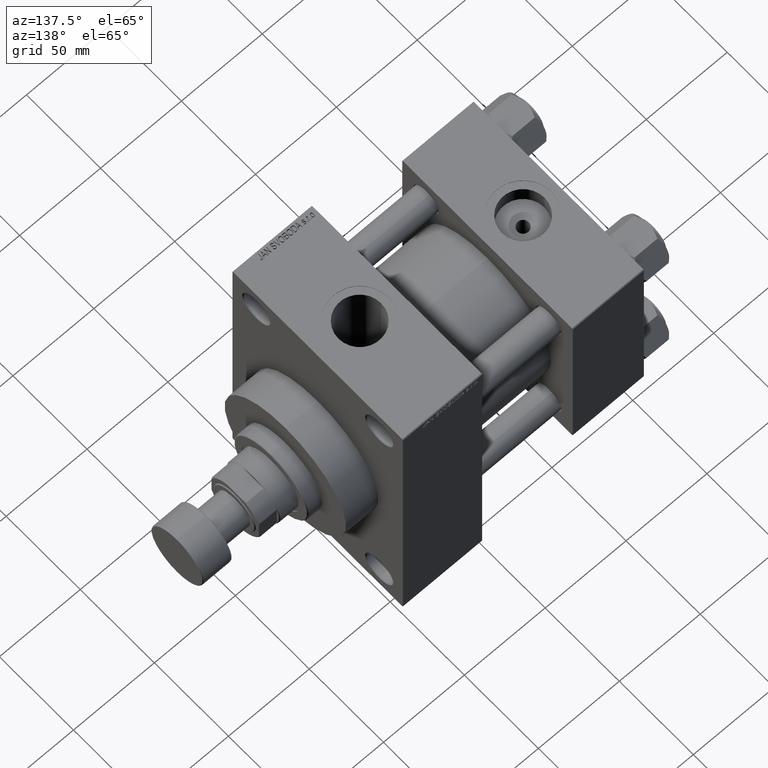
[diagram: clean part render]
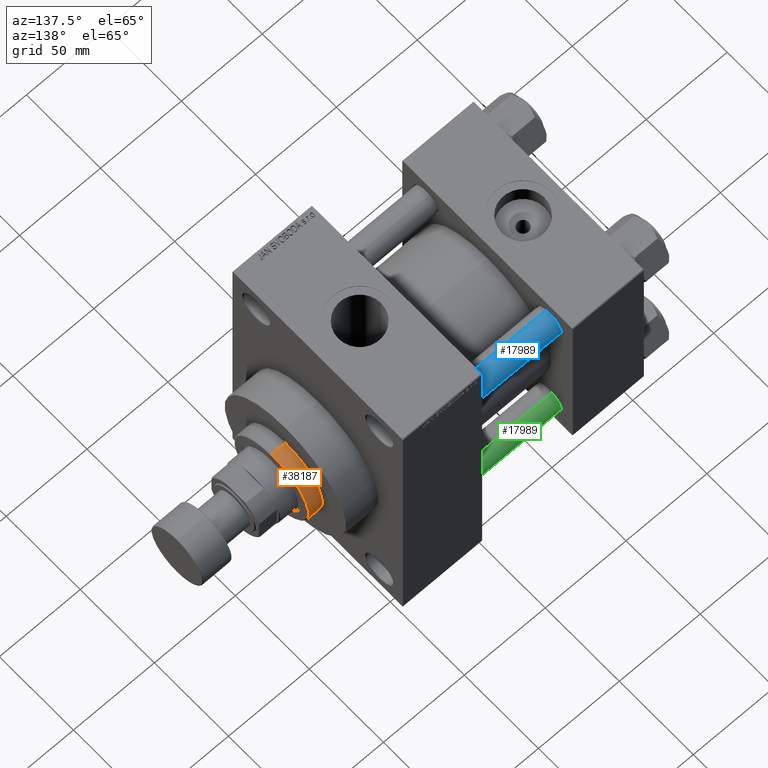
[diagram: same view with three faces highlighted in distinct colors, each labeled with its STEP entity id]
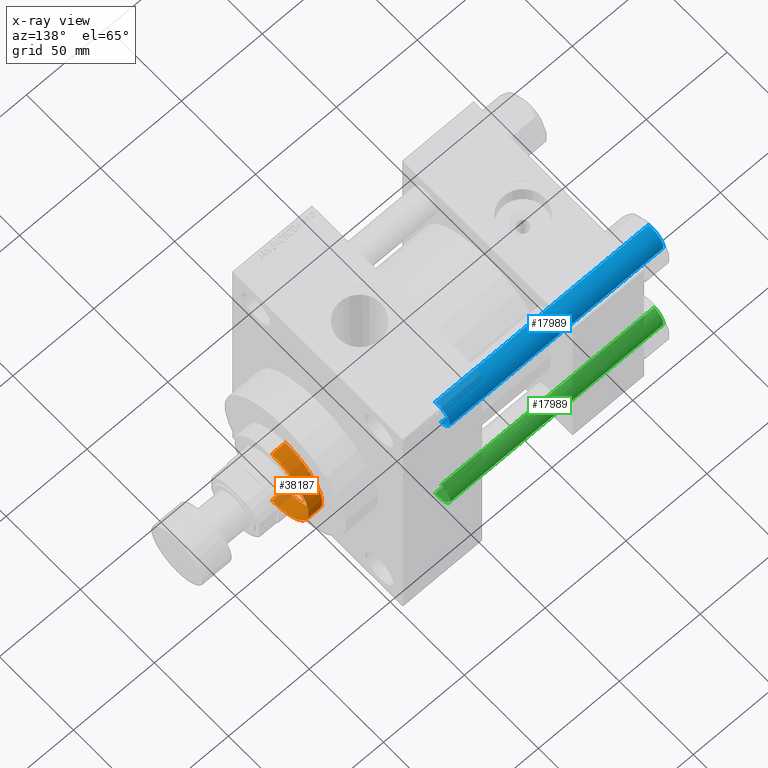
[diagram: x-ray of the same camera — body ghosted, the three highlighted faces saturated]
A machine part, auxiliary view with three faces highlighted in distinct colors.
The next image is the same camera in x-ray (body ghosted, the three faces saturated) — at least one of them is partly hidden behind the body in this view.
Their STEP definitions:

[orange] entity #38187 — the highlighted cylindrical surface (partial cylindrical patch) has radius 25 mm, axis along (-1, 0, 0).
#120 = VECTOR ( 'NONE', #26146, 1000.000000000000000 ) ;
#175 = EDGE_CURVE ( 'NONE', #46886, #29281, #3511, .T. ) ;
#356 = AXIS2_PLACEMENT_3D ( 'NONE', #40593, #25486, #33033 ) ;
#415 = AXIS2_PLACEMENT_3D ( 'NONE', #38370, #19871, #16236 ) ;
#2506 = AXIS2_PLACEMENT_3D ( 'NONE', #10748, #22393, #3681 ) ;
#3511 = LINE ( 'NONE', #40988, #30192 ) ;
#3681 = DIRECTION ( 'NONE',  ( 1.000000000000000000, 0.000000000000000000, 0.000000000000000000 ) ) ;
#4488 = CARTESIAN_POINT ( 'NONE',  ( -25.00000000000000000, 0.000000000000000000, 43.25999999999999801 ) ) ;
#4755 = VERTEX_POINT ( 'NONE', #43907 ) ;
#7652 = DIRECTION ( 'NONE',  ( -0.000000000000000000, -0.000000000000000000, -1.000000000000000000 ) ) ;
#9771 = EDGE_LOOP ( 'NONE', ( #36014, #29219, #37238, #14793 ) ) ;
#10748 = CARTESIAN_POINT ( 'NONE',  ( 0.000000000000000000, 0.000000000000000000, 43.25999999999999801 ) ) ;
#14793 = ORIENTED_EDGE ( 'NONE', *, *, #30797, .T. ) ;
#16236 = DIRECTION ( 'NONE',  ( -1.000000000000000000, 0.000000000000000000, 0.000000000000000000 ) ) ;
#18196 = CIRCLE ( 'NONE', #356, 25.00000000000000000 ) ;
#19659 = CARTESIAN_POINT ( 'NONE',  ( 25.00000000000000000, 3.061616997868383043E-15, 51.75999999999996959 ) ) ;
#19741 = VERTEX_POINT ( 'NONE', #19659 ) ;
#19793 = LINE ( 'NONE', #37583, #120 ) ;
#19871 = DIRECTION ( 'NONE',  ( -0.000000000000000000, -0.000000000000000000, -1.000000000000000000 ) ) ;
#22393 = DIRECTION ( 'NONE',  ( 0.000000000000000000, 0.000000000000000000, 1.000000000000000000 ) ) ;
#24758 = EDGE_CURVE ( 'NONE', #19741, #4755, #19793, .T. ) ;
#25486 = DIRECTION ( 'NONE',  ( 0.000000000000000000, 0.000000000000000000, -1.000000000000000000 ) ) ;
#26146 = DIRECTION ( 'NONE',  ( -0.000000000000000000, -0.000000000000000000, -1.000000000000000000 ) ) ;
#26942 = FACE_OUTER_BOUND ( 'NONE', #9771, .T. ) ;
#27174 = CYLINDRICAL_SURFACE ( 'NONE', #415, 25.00000000000000000 ) ;
#29219 = ORIENTED_EDGE ( 'NONE', *, *, #35975, .T. ) ;
#29281 = VERTEX_POINT ( 'NONE', #4488 ) ;
#30192 = VECTOR ( 'NONE', #7652, 1000.000000000000000 ) ;
#30797 = EDGE_CURVE ( 'NONE', #29281, #4755, #42910, .T. ) ;
#33033 = DIRECTION ( 'NONE',  ( 1.000000000000000000, 0.000000000000000000, 0.000000000000000000 ) ) ;
#35975 = EDGE_CURVE ( 'NONE', #19741, #46886, #18196, .T. ) ;
#36014 = ORIENTED_EDGE ( 'NONE', *, *, #24758, .F. ) ;
#37238 = ORIENTED_EDGE ( 'NONE', *, *, #175, .T. ) ;
#37583 = CARTESIAN_POINT ( 'NONE',  ( 25.00000000000000000, 3.061616997868383043E-15, 52.25999999999999801 ) ) ;
#38187 = ADVANCED_FACE ( 'NONE', ( #26942 ), #27174, .T. ) ;
#38370 = CARTESIAN_POINT ( 'NONE',  ( 0.000000000000000000, 0.000000000000000000, 52.25999999999999801 ) ) ;
#40593 = CARTESIAN_POINT ( 'NONE',  ( 0.000000000000000000, 0.000000000000000000, 51.75999999999996959 ) ) ;
#40988 = CARTESIAN_POINT ( 'NONE',  ( -25.00000000000000000, 0.000000000000000000, 52.25999999999999801 ) ) ;
#42910 = CIRCLE ( 'NONE', #2506, 25.00000000000000000 ) ;
#43907 = CARTESIAN_POINT ( 'NONE',  ( 25.00000000000000000, 3.061616997868383043E-15, 43.25999999999999801 ) ) ;
#46886 = VERTEX_POINT ( 'NONE', #47175 ) ;
#47175 = CARTESIAN_POINT ( 'NONE',  ( -25.00000000000000000, 0.000000000000000000, 51.75999999999996959 ) ) ;

[blue] entity #17989 — the highlighted cylindrical surface (edge-blend (fillet) strip) has radius 8 mm, axis along (-1, -0, 0).
#3568 = VECTOR ( 'NONE', #43249, 1000.000000000000000 ) ;
#3967 = ORIENTED_EDGE ( 'NONE', *, *, #5943, .T. ) ;
#4111 = AXIS2_PLACEMENT_3D ( 'NONE', #20621, #13575, #24747 ) ;
#4112 = ORIENTED_EDGE ( 'NONE', *, *, #16811, .F. ) ;
#5048 = CYLINDRICAL_SURFACE ( 'NONE', #47881, 8.000000000000000000 ) ;
#5943 = EDGE_CURVE ( 'NONE', #8402, #23435, #13938, .T. ) ;
#6880 = CARTESIAN_POINT ( 'NONE',  ( 8.000000000000000000, 9.797174393178825657E-16, 133.0000000000000000 ) ) ;
#6985 = CARTESIAN_POINT ( 'NONE',  ( -8.000000000000000000, 0.000000000000000000, 133.0000000000000000 ) ) ;
#7716 = CARTESIAN_POINT ( 'NONE',  ( -8.000000000000000000, 0.000000000000000000, 132.5000000000000284 ) ) ;
#8288 = VERTEX_POINT ( 'NONE', #20028 ) ;
#8402 = VERTEX_POINT ( 'NONE', #14433 ) ;
#13111 = DIRECTION ( 'NONE',  ( 1.000000000000000000, 0.000000000000000000, 0.000000000000000000 ) ) ;
#13328 = DIRECTION ( 'NONE',  ( -1.000000000000000000, 0.000000000000000000, 0.000000000000000000 ) ) ;
#13450 = CARTESIAN_POINT ( 'NONE',  ( 8.000000000000000000, 9.797174393178825657E-16, 0.5000000000000004441 ) ) ;
#13575 = DIRECTION ( 'NONE',  ( -0.000000000000000000, -0.000000000000000000, 1.000000000000000000 ) ) ;
#13760 = AXIS2_PLACEMENT_3D ( 'NONE', #35241, #16755, #13111 ) ;
#13938 = LINE ( 'NONE', #6880, #17864 ) ;
#14433 = CARTESIAN_POINT ( 'NONE',  ( 8.000000000000000000, 9.797174393178825657E-16, 132.5000000000000284 ) ) ;
#15471 = EDGE_LOOP ( 'NONE', ( #30884, #3967, #41811, #4112 ) ) ;
#16755 = DIRECTION ( 'NONE',  ( 0.000000000000000000, 0.000000000000000000, -1.000000000000000000 ) ) ;
#16811 = EDGE_CURVE ( 'NONE', #45496, #8288, #31799, .T. ) ;
#17864 = VECTOR ( 'NONE', #29004, 1000.000000000000000 ) ;
#17989 = ADVANCED_FACE ( 'NONE', ( #39122 ), #5048, .T. ) ;
#20028 = CARTESIAN_POINT ( 'NONE',  ( -8.000000000000000000, 0.000000000000000000, 0.5000000000000004441 ) ) ;
#20621 = CARTESIAN_POINT ( 'NONE',  ( 0.000000000000000000, 0.000000000000000000, 0.5000000000000004441 ) ) ;
#23435 = VERTEX_POINT ( 'NONE', #13450 ) ;
#24747 = DIRECTION ( 'NONE',  ( 1.000000000000000000, 0.000000000000000000, 0.000000000000000000 ) ) ;
#27962 = EDGE_CURVE ( 'NONE', #23435, #8288, #39854, .T. ) ;
#29004 = DIRECTION ( 'NONE',  ( -0.000000000000000000, -0.000000000000000000, -1.000000000000000000 ) ) ;
#30884 = ORIENTED_EDGE ( 'NONE', *, *, #41657, .T. ) ;
#31799 = LINE ( 'NONE', #6985, #3568 ) ;
#34711 = CIRCLE ( 'NONE', #13760, 8.000000000000000000 ) ;
#35241 = CARTESIAN_POINT ( 'NONE',  ( 0.000000000000000000, 0.000000000000000000, 132.5000000000000284 ) ) ;
#35454 = CARTESIAN_POINT ( 'NONE',  ( 0.000000000000000000, 0.000000000000000000, 133.0000000000000000 ) ) ;
#38884 = DIRECTION ( 'NONE',  ( -0.000000000000000000, -0.000000000000000000, -1.000000000000000000 ) ) ;
#39122 = FACE_OUTER_BOUND ( 'NONE', #15471, .T. ) ;
#39854 = CIRCLE ( 'NONE', #4111, 8.000000000000000000 ) ;
#41657 = EDGE_CURVE ( 'NONE', #45496, #8402, #34711, .T. ) ;
#41811 = ORIENTED_EDGE ( 'NONE', *, *, #27962, .T. ) ;
#43249 = DIRECTION ( 'NONE',  ( -0.000000000000000000, -0.000000000000000000, -1.000000000000000000 ) ) ;
#45496 = VERTEX_POINT ( 'NONE', #7716 ) ;
#47881 = AXIS2_PLACEMENT_3D ( 'NONE', #35454, #38884, #13328 ) ;

[green] entity #17989 — the highlighted cylindrical surface (edge-blend (fillet) strip) has radius 8 mm, axis along (1, -0, 0).
#3568 = VECTOR ( 'NONE', #43249, 1000.000000000000000 ) ;
#3967 = ORIENTED_EDGE ( 'NONE', *, *, #5943, .T. ) ;
#4111 = AXIS2_PLACEMENT_3D ( 'NONE', #20621, #13575, #24747 ) ;
#4112 = ORIENTED_EDGE ( 'NONE', *, *, #16811, .F. ) ;
#5048 = CYLINDRICAL_SURFACE ( 'NONE', #47881, 8.000000000000000000 ) ;
#5943 = EDGE_CURVE ( 'NONE', #8402, #23435, #13938, .T. ) ;
#6880 = CARTESIAN_POINT ( 'NONE',  ( 8.000000000000000000, 9.797174393178825657E-16, 133.0000000000000000 ) ) ;
#6985 = CARTESIAN_POINT ( 'NONE',  ( -8.000000000000000000, 0.000000000000000000, 133.0000000000000000 ) ) ;
#7716 = CARTESIAN_POINT ( 'NONE',  ( -8.000000000000000000, 0.000000000000000000, 132.5000000000000284 ) ) ;
#8288 = VERTEX_POINT ( 'NONE', #20028 ) ;
#8402 = VERTEX_POINT ( 'NONE', #14433 ) ;
#13111 = DIRECTION ( 'NONE',  ( 1.000000000000000000, 0.000000000000000000, 0.000000000000000000 ) ) ;
#13328 = DIRECTION ( 'NONE',  ( -1.000000000000000000, 0.000000000000000000, 0.000000000000000000 ) ) ;
#13450 = CARTESIAN_POINT ( 'NONE',  ( 8.000000000000000000, 9.797174393178825657E-16, 0.5000000000000004441 ) ) ;
#13575 = DIRECTION ( 'NONE',  ( -0.000000000000000000, -0.000000000000000000, 1.000000000000000000 ) ) ;
#13760 = AXIS2_PLACEMENT_3D ( 'NONE', #35241, #16755, #13111 ) ;
#13938 = LINE ( 'NONE', #6880, #17864 ) ;
#14433 = CARTESIAN_POINT ( 'NONE',  ( 8.000000000000000000, 9.797174393178825657E-16, 132.5000000000000284 ) ) ;
#15471 = EDGE_LOOP ( 'NONE', ( #30884, #3967, #41811, #4112 ) ) ;
#16755 = DIRECTION ( 'NONE',  ( 0.000000000000000000, 0.000000000000000000, -1.000000000000000000 ) ) ;
#16811 = EDGE_CURVE ( 'NONE', #45496, #8288, #31799, .T. ) ;
#17864 = VECTOR ( 'NONE', #29004, 1000.000000000000000 ) ;
#17989 = ADVANCED_FACE ( 'NONE', ( #39122 ), #5048, .T. ) ;
#20028 = CARTESIAN_POINT ( 'NONE',  ( -8.000000000000000000, 0.000000000000000000, 0.5000000000000004441 ) ) ;
#20621 = CARTESIAN_POINT ( 'NONE',  ( 0.000000000000000000, 0.000000000000000000, 0.5000000000000004441 ) ) ;
#23435 = VERTEX_POINT ( 'NONE', #13450 ) ;
#24747 = DIRECTION ( 'NONE',  ( 1.000000000000000000, 0.000000000000000000, 0.000000000000000000 ) ) ;
#27962 = EDGE_CURVE ( 'NONE', #23435, #8288, #39854, .T. ) ;
#29004 = DIRECTION ( 'NONE',  ( -0.000000000000000000, -0.000000000000000000, -1.000000000000000000 ) ) ;
#30884 = ORIENTED_EDGE ( 'NONE', *, *, #41657, .T. ) ;
#31799 = LINE ( 'NONE', #6985, #3568 ) ;
#34711 = CIRCLE ( 'NONE', #13760, 8.000000000000000000 ) ;
#35241 = CARTESIAN_POINT ( 'NONE',  ( 0.000000000000000000, 0.000000000000000000, 132.5000000000000284 ) ) ;
#35454 = CARTESIAN_POINT ( 'NONE',  ( 0.000000000000000000, 0.000000000000000000, 133.0000000000000000 ) ) ;
#38884 = DIRECTION ( 'NONE',  ( -0.000000000000000000, -0.000000000000000000, -1.000000000000000000 ) ) ;
#39122 = FACE_OUTER_BOUND ( 'NONE', #15471, .T. ) ;
#39854 = CIRCLE ( 'NONE', #4111, 8.000000000000000000 ) ;
#41657 = EDGE_CURVE ( 'NONE', #45496, #8402, #34711, .T. ) ;
#41811 = ORIENTED_EDGE ( 'NONE', *, *, #27962, .T. ) ;
#43249 = DIRECTION ( 'NONE',  ( -0.000000000000000000, -0.000000000000000000, -1.000000000000000000 ) ) ;
#45496 = VERTEX_POINT ( 'NONE', #7716 ) ;
#47881 = AXIS2_PLACEMENT_3D ( 'NONE', #35454, #38884, #13328 ) ;